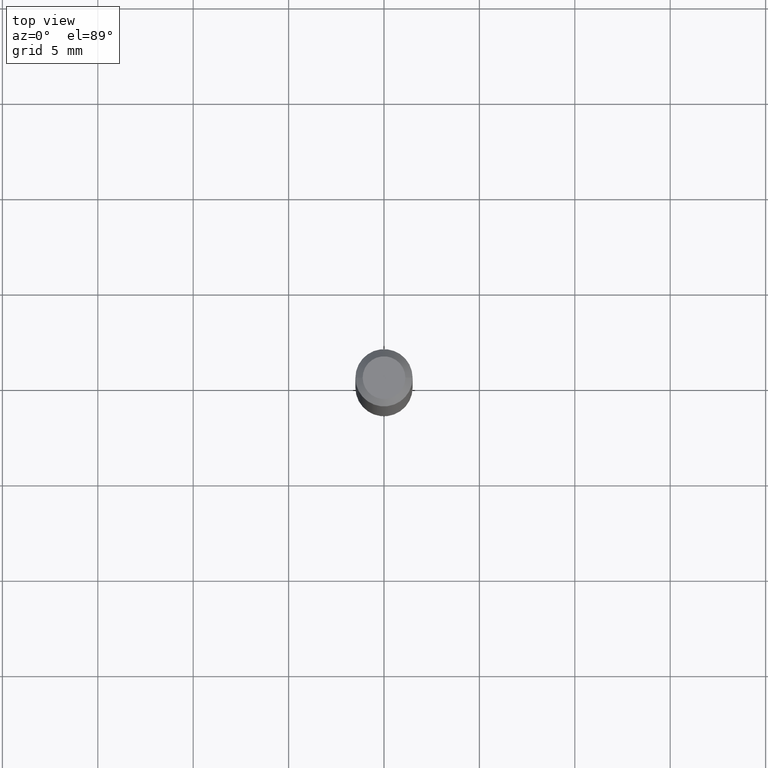
[diagram: clean part render]
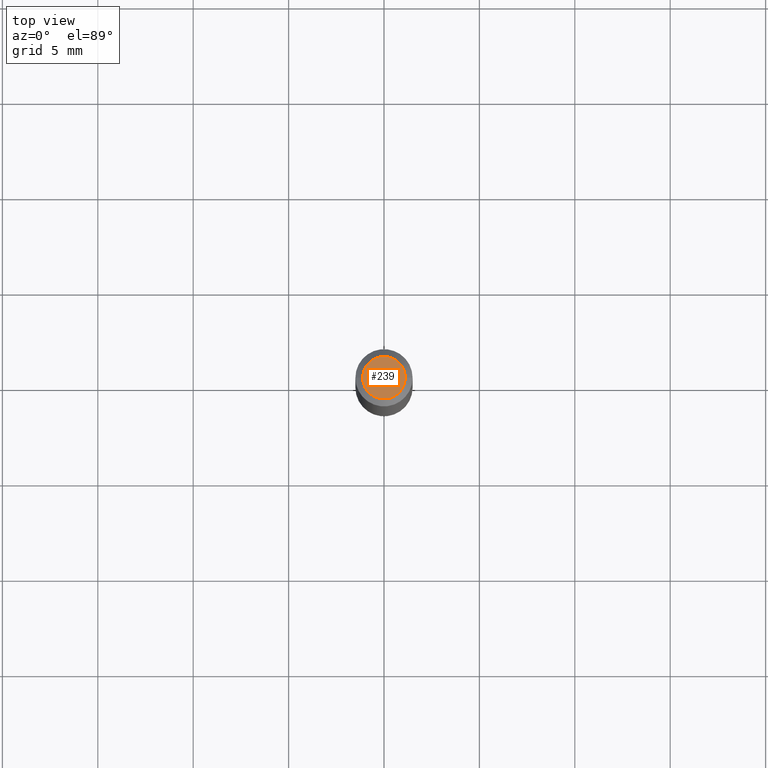
[diagram: same view with one face highlighted and labeled with its STEP entity id]
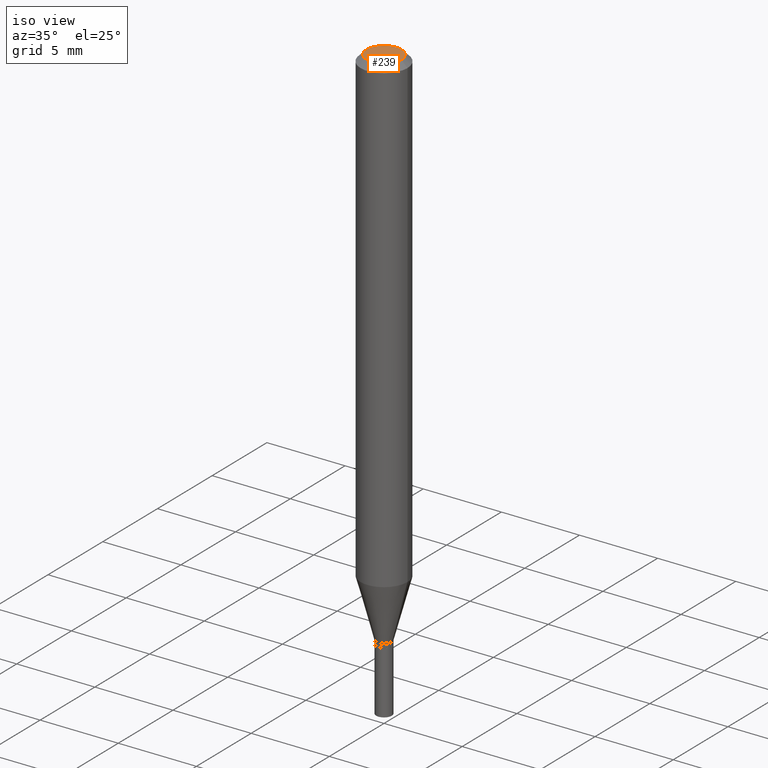
[diagram: same view with one face highlighted and labeled with its STEP entity id]
A machine part, top view. The second image highlights one B-rep face of the part: STEP entity #239.
A second angle (iso view) of the same face is appended — the face is thin or edge-on in the first view.
In plain terms, the highlighted planar face has unit normal (0, -0, -1).
Its self-contained STEP definition (entity closure, byte-faithful):
#12 = DIRECTION ( 'NONE',  ( -2.445468806185136597E-29, 3.491481338843145583E-15, 1.000000000000000000 ) ) ;
#22 = DIRECTION ( 'NONE',  ( -2.445468806185136597E-29, 3.491481338843145583E-15, 1.000000000000000000 ) ) ;
#32 = AXIS2_PLACEMENT_3D ( 'NONE', #260, #12, #305 ) ;
#34 = EDGE_LOOP ( 'NONE', ( #128, #156 ) ) ;
#38 = CARTESIAN_POINT ( 'NONE',  ( -0.04404999999999999888, 3.337856159934041534E-16, 3.533548453838689148E-16 ) ) ;
#39 = CIRCLE ( 'NONE', #58, 0.04404999999999999888 ) ;
#58 = AXIS2_PLACEMENT_3D ( 'NONE', #333, #22, #82 ) ;
#76 = DIRECTION ( 'NONE',  ( 2.438088387897960049E-29, -3.491481338843145188E-15, -1.000000000000000000 ) ) ;
#82 = DIRECTION ( 'NONE',  ( 1.000000000000000000, -6.982962677686265922E-15, 4.819687581474398999E-29 ) ) ;
#128 = ORIENTED_EDGE ( 'NONE', *, *, #403, .T. ) ;
#134 = VERTEX_POINT ( 'NONE', #218 ) ;
#156 = ORIENTED_EDGE ( 'NONE', *, *, #350, .T. ) ;
#184 = DIRECTION ( 'NONE',  ( -1.000000000000000000, 6.982962677686265922E-15, -4.876176775795935793E-29 ) ) ;
#218 = CARTESIAN_POINT ( 'NONE',  ( 0.04404999999999999888, -3.798447818264455642E-16, 3.533548453838735986E-16 ) ) ;
#230 = VERTEX_POINT ( 'NONE', #38 ) ;
#235 = CIRCLE ( 'NONE', #32, 0.04404999999999999888 ) ;
#239 = ADVANCED_FACE ( 'NONE', ( #255 ), #324, .F. ) ;
#255 = FACE_OUTER_BOUND ( 'NONE', #34, .T. ) ;
#260 = CARTESIAN_POINT ( 'NONE',  ( -8.641182519006289553E-45, 1.233731848647591164E-30, 3.533548453838711334E-16 ) ) ;
#305 = DIRECTION ( 'NONE',  ( 1.000000000000000000, -6.982962677686265922E-15, 4.819687581474398999E-29 ) ) ;
#311 = AXIS2_PLACEMENT_3D ( 'NONE', #369, #76, #184 ) ;
#324 = PLANE ( 'NONE',  #311 ) ;
#333 = CARTESIAN_POINT ( 'NONE',  ( -8.641182519006289553E-45, 1.233731848647591164E-30, 3.533548453838711334E-16 ) ) ;
#350 = EDGE_CURVE ( 'NONE', #134, #230, #235, .T. ) ;
#369 = CARTESIAN_POINT ( 'NONE',  ( 3.075995059520799729E-16, 0.04404999999999999888, 2.287766971589501637E-17 ) ) ;
#403 = EDGE_CURVE ( 'NONE', #230, #134, #39, .T. ) ;